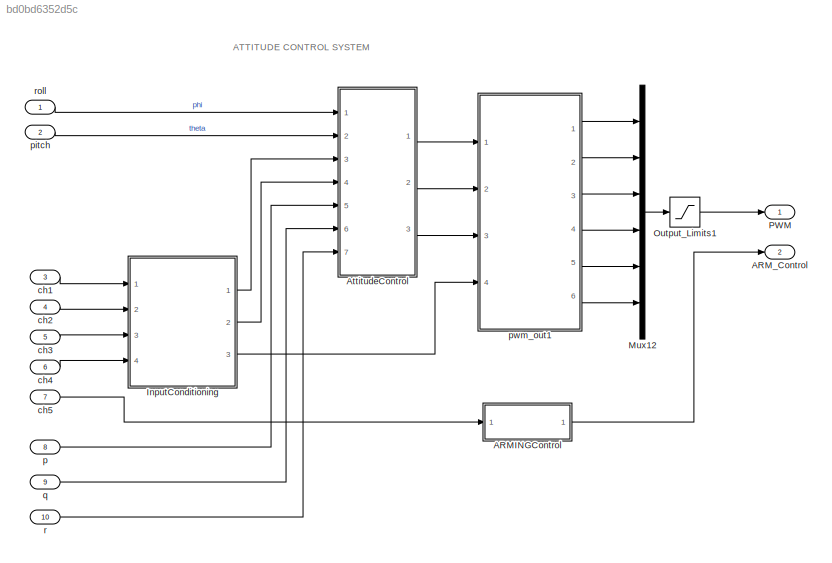
MODEL slx_bd0bd6352d5c
KIND model
CONFIG AbsTol = auto
CONFIG EnableMultiTasking = off
CONFIG FixedStep = auto
CONFIG MaxStep = auto
CONFIG MinStep = auto
CONFIG PostLoadFcn = kFactor = 1.2;\n\nKpRollAttitude = 0.630138625117681 / kFactor;\nKiRollAttitude = 0.0552303199591522 / kFactor;\n\nKpPitchAttitude = 0.630138625117681 / kFactor;\nKiPitchAttitude = 0.0552303199591522 / kFactor;\n\nKpRollRate = 1.31533836563383 / kFactor;\nKiRollRate = 0.460338699849681 / kFactor;\n\nKpPitchRate = 1.31533836563383 / kFactor;\nKiPitchRate = 0.460338699849681 / kFactor;\n\nKpYawRate = 1.3153383656...<+57ch>
CONFIG RelTol = 1e-3
CONFIG SampleTimeConstraint = Unconstrained
CONFIG Solver = FixedStepDiscrete
CONFIG SolverName = FixedStepDiscrete
CONFIG StartTime = 0.0
CONFIG StopTime = inf
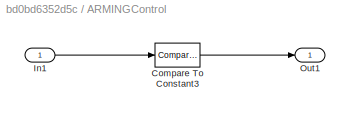
BLOCK [SubSystem] ARMINGControl
  Ports = [1, 1]
  RequestExecContextInheritance = off
  Variant = off
BLOCK [Reference] ARMINGControl/Compare To Constant3  REF=simulink/Logic and Bit
Operations/Compare
To Constant
  Ports = [1, 1]
  SourceBlock = simulink/Logic and Bit\nOperations/Compare\nTo Constant
  SourceType = Compare To Constant
BLOCK [Inport] ARMINGControl/In1
  IconDisplay = Port number
BLOCK [Outport] ARMINGControl/Out1
  IconDisplay = Port number
BLOCK [Outport] ARM_Control
  IconDisplay = Port number
  Port = 2
  PortDimensions = 1
  SamplingMode = Sample based
  SignalType = real
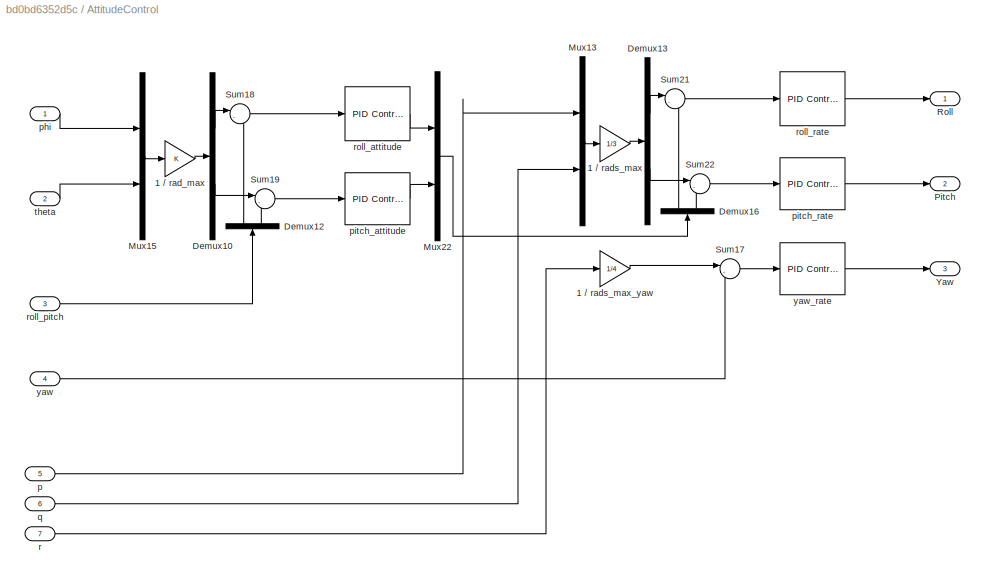
BLOCK [SubSystem] AttitudeControl
  Ports = [7, 3]
  RequestExecContextInheritance = off
  Variant = off
BLOCK [Gain] AttitudeControl/1 // rad_max
  OutDataTypeStr = Inherit: Inherit via internal rule
  ParamDataTypeStr = Inherit: Inherit via internal rule
  SaturateOnIntegerOverflow = off
BLOCK [Gain] AttitudeControl/1 // rads_max
  Gain = 1/3
  OutDataTypeStr = Inherit: Inherit via internal rule
  ParamDataTypeStr = Inherit: Inherit via internal rule
  SaturateOnIntegerOverflow = off
BLOCK [Gain] AttitudeControl/1 // rads_max_yaw
  Gain = 1/4
  OutDataTypeStr = Inherit: Inherit via internal rule
  ParamDataTypeStr = Inherit: Inherit via internal rule
  SaturateOnIntegerOverflow = off
BLOCK [Demux] AttitudeControl/Demux10
  DisplayOption = bar
  Outputs = 2
  Ports = [1, 2]
BLOCK [Demux] AttitudeControl/Demux12
  DisplayOption = bar
  Outputs = 2
  Ports = [1, 2]
BLOCK [Demux] AttitudeControl/Demux13
  DisplayOption = bar
  Outputs = 2
  Ports = [1, 2]
BLOCK [Demux] AttitudeControl/Demux16
  DisplayOption = bar
  Outputs = 2
  Ports = [1, 2]
BLOCK [Mux] AttitudeControl/Mux13
  DisplayOption = bar
  Inputs = 2
  Ports = [2, 1]
BLOCK [Mux] AttitudeControl/Mux15
  DisplayOption = bar
  Inputs = 2
  Ports = [2, 1]
BLOCK [Mux] AttitudeControl/Mux22
  DisplayOption = bar
  Inputs = 2
  Ports = [2, 1]
BLOCK [Outport] AttitudeControl/Pitch
  IconDisplay = Port number
  Port = 2
BLOCK [Outport] AttitudeControl/Roll
  IconDisplay = Port number
BLOCK [Sum] AttitudeControl/Sum17
  IconShape = round
  InputSameDT = off
  Inputs = |-+
  OutDataTypeStr = Inherit: Inherit via internal rule
  Ports = [2, 1]
  SaturateOnIntegerOverflow = off
BLOCK [Sum] AttitudeControl/Sum18
  IconShape = round
  InputSameDT = off
  Inputs = |-+
  OutDataTypeStr = Inherit: Inherit via internal rule
  Ports = [2, 1]
  SaturateOnIntegerOverflow = off
BLOCK [Sum] AttitudeControl/Sum19
  IconShape = round
  InputSameDT = off
  Inputs = |-+
  OutDataTypeStr = Inherit: Inherit via internal rule
  Ports = [2, 1]
  SaturateOnIntegerOverflow = off
BLOCK [Sum] AttitudeControl/Sum21
  IconShape = round
  InputSameDT = off
  Inputs = |-+
  OutDataTypeStr = Inherit: Inherit via internal rule
  Ports = [2, 1]
  SaturateOnIntegerOverflow = off
BLOCK [Sum] AttitudeControl/Sum22
  IconShape = round
  InputSameDT = off
  Inputs = |-+
  OutDataTypeStr = Inherit: Inherit via internal rule
  Ports = [2, 1]
  SaturateOnIntegerOverflow = off
BLOCK [Outport] AttitudeControl/Yaw
  IconDisplay = Port number
  Port = 3
BLOCK [Inport] AttitudeControl/p
  IconDisplay = Port number
  Port = 5
BLOCK [Inport] AttitudeControl/phi
  IconDisplay = Port number
BLOCK [Reference] AttitudeControl/pitch_attitude  REF=simulink/Continuous/PID Controller
  Ports = [1, 1]
  SourceBlock = simulink/Continuous/PID Controller
  SourceType = PID 1dof
BLOCK [Reference] AttitudeControl/pitch_rate  REF=simulink/Continuous/PID Controller
  Ports = [1, 1]
  SourceBlock = simulink/Continuous/PID Controller
  SourceType = PID 1dof
BLOCK [Inport] AttitudeControl/q
  IconDisplay = Port number
  Port = 6
BLOCK [Inport] AttitudeControl/r
  IconDisplay = Port number
  Port = 7
BLOCK [Reference] AttitudeControl/roll_attitude  REF=simulink/Continuous/PID Controller
  Ports = [1, 1]
  SourceBlock = simulink/Continuous/PID Controller
  SourceType = PID 1dof
BLOCK [Inport] AttitudeControl/roll_pitch
  IconDisplay = Port number
  Port = 3
BLOCK [Reference] AttitudeControl/roll_rate  REF=simulink/Continuous/PID Controller
  Ports = [1, 1]
  SourceBlock = simulink/Continuous/PID Controller
  SourceType = PID 1dof
BLOCK [Inport] AttitudeControl/theta
  IconDisplay = Port number
  Port = 2
BLOCK [Inport] AttitudeControl/yaw
  IconDisplay = Port number
  Port = 4
BLOCK [Reference] AttitudeControl/yaw_rate  REF=simulink/Continuous/PID Controller
  Ports = [1, 1]
  SourceBlock = simulink/Continuous/PID Controller
  SourceType = PID 1dof
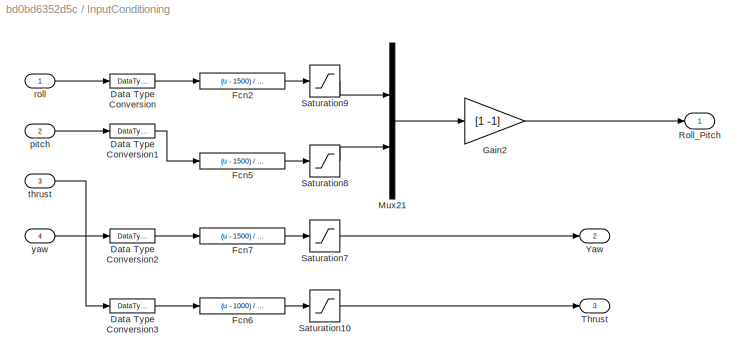
BLOCK [SubSystem] InputConditioning
  Ports = [4, 3]
  RequestExecContextInheritance = off
  Variant = off
BLOCK [DataTypeConversion] InputConditioning/Data Type Conversion
  OutDataTypeStr = single
  RndMeth = Floor
  SaturateOnIntegerOverflow = off
BLOCK [DataTypeConversion] InputConditioning/Data Type Conversion1
  OutDataTypeStr = single
  RndMeth = Floor
  SaturateOnIntegerOverflow = off
BLOCK [DataTypeConversion] InputConditioning/Data Type Conversion2
  OutDataTypeStr = single
  RndMeth = Floor
  SaturateOnIntegerOverflow = off
BLOCK [DataTypeConversion] InputConditioning/Data Type Conversion3
  OutDataTypeStr = single
  RndMeth = Floor
  SaturateOnIntegerOverflow = off
BLOCK [Fcn] InputConditioning/Fcn2
  Expr = (u - 1500) / 500
BLOCK [Fcn] InputConditioning/Fcn5
  Expr = (u - 1500) / 500
BLOCK [Fcn] InputConditioning/Fcn6
  Expr = (u - 1000) / 1000
BLOCK [Fcn] InputConditioning/Fcn7
  Expr = (u - 1500) / 500
BLOCK [Gain] InputConditioning/Gain2
  Gain = [1 -1]
  OutDataTypeStr = Inherit: Inherit via back propagation
  ParamDataTypeStr = Inherit: Inherit via internal rule
  SaturateOnIntegerOverflow = off
BLOCK [Mux] InputConditioning/Mux21
  DisplayOption = bar
  Inputs = 2
  Ports = [2, 1]
BLOCK [Outport] InputConditioning/Roll_Pitch
  IconDisplay = Port number
BLOCK [Saturate] InputConditioning/Saturation10
  InputPortMap = u0
  LowerLimit = 0
  Ports = [1, 1]
  UpperLimit = 1
BLOCK [Saturate] InputConditioning/Saturation7
  InputPortMap = u0
  LowerLimit = -1
  Ports = [1, 1]
  UpperLimit = 1
BLOCK [Saturate] InputConditioning/Saturation8
  InputPortMap = u0
  LowerLimit = -1
  Ports = [1, 1]
  UpperLimit = 1
BLOCK [Saturate] InputConditioning/Saturation9
  InputPortMap = u0
  LowerLimit = -1
  Ports = [1, 1]
  UpperLimit = 1
BLOCK [Outport] InputConditioning/Thrust
  IconDisplay = Port number
  Port = 3
BLOCK [Outport] InputConditioning/Yaw
  IconDisplay = Port number
  Port = 2
BLOCK [Inport] InputConditioning/pitch
  IconDisplay = Port number
  Port = 2
BLOCK [Inport] InputConditioning/roll
  IconDisplay = Port number
BLOCK [Inport] InputConditioning/thrust
  IconDisplay = Port number
  Port = 3
BLOCK [Inport] InputConditioning/yaw
  IconDisplay = Port number
  Port = 4
BLOCK [Mux] Mux12
  DisplayOption = bar
  Inputs = 6
  Ports = [6, 1]
BLOCK [Saturate] Output_Limits1
  InputPortMap = u0
  LowerLimit = 1000
  Ports = [1, 1]
  UpperLimit = 2000
BLOCK [Outport] PWM
  IconDisplay = Port number
  PortDimensions = 6
  SamplingMode = Sample based
  SignalType = real
BLOCK [Inport] ch1
  IconDisplay = Port number
  OutDataTypeStr = uint16
  Port = 3
  PortDimensions = 1
  SamplingMode = Sample based
  SignalType = real
BLOCK [Inport] ch2
  IconDisplay = Port number
  OutDataTypeStr = uint16
  Port = 4
  PortDimensions = 1
  SamplingMode = Sample based
  SignalType = real
BLOCK [Inport] ch3
  IconDisplay = Port number
  OutDataTypeStr = uint16
  Port = 5
  PortDimensions = 1
  SamplingMode = Sample based
  SignalType = real
BLOCK [Inport] ch4
  IconDisplay = Port number
  OutDataTypeStr = uint16
  Port = 6
  PortDimensions = 1
  SamplingMode = Sample based
  SignalType = real
BLOCK [Inport] ch5
  IconDisplay = Port number
  Interpolate = off
  OutDataTypeStr = uint16
  Port = 7
  PortDimensions = 1
  SamplingMode = Sample based
  SignalType = real
BLOCK [Inport] p
  IconDisplay = Port number
  Port = 8
  PortDimensions = 1
  SamplingMode = Sample based
  SignalType = real
BLOCK [Inport] pitch
  IconDisplay = Port number
  Port = 2
  PortDimensions = 1
  SamplingMode = Sample based
  SignalType = real
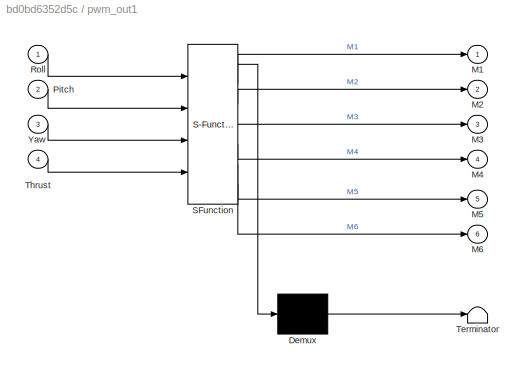
BLOCK [SubSystem] pwm_out1
  ErrorFcn = Stateflow.Translate.translate
  PermitHierarchicalResolution = ExplicitOnly
  Ports = [4, 6]
  RequestExecContextInheritance = off
  SFBlockType = MATLAB Function
  SystemSampleTime = 0.004
  TreatAsAtomicUnit = on
  Variant = off
BLOCK [Demux] pwm_out1/ Demux 
  Outputs = 1
  Ports = [1, 1]
BLOCK [S-Function] pwm_out1/ SFunction 
  EnableBusSupport = off
  FunctionName = sf_sfun
  PortCounts = [4 7]
  Ports = [4, 7]
  SFcnIsStateOwnerBlock = off
  SFunctionDeploymentMode = off
  Tag = Stateflow S-Function px4demo_attitude_control1 4
BLOCK [Terminator] pwm_out1/ Terminator 
BLOCK [Outport] pwm_out1/M1
  IconDisplay = Port number
BLOCK [Outport] pwm_out1/M2
  IconDisplay = Port number
  Port = 2
BLOCK [Outport] pwm_out1/M3
  IconDisplay = Port number
  Port = 3
BLOCK [Outport] pwm_out1/M4
  IconDisplay = Port number
  Port = 4
BLOCK [Outport] pwm_out1/M5
  IconDisplay = Port number
  Port = 5
BLOCK [Outport] pwm_out1/M6
  IconDisplay = Port number
  Port = 6
BLOCK [Inport] pwm_out1/Pitch
  IconDisplay = Port number
  Port = 2
BLOCK [Inport] pwm_out1/Roll
  IconDisplay = Port number
BLOCK [Inport] pwm_out1/Thrust
  IconDisplay = Port number
  Port = 4
BLOCK [Inport] pwm_out1/Yaw
  IconDisplay = Port number
  Port = 3
BLOCK [Inport] q
  IconDisplay = Port number
  Port = 9
  PortDimensions = 1
  SamplingMode = Sample based
  SignalType = real
BLOCK [Inport] r
  IconDisplay = Port number
  Port = 10
  PortDimensions = 1
  SamplingMode = Sample based
  SignalType = real
BLOCK [Inport] roll
  IconDisplay = Port number
  OutDataTypeStr = single
  PortDimensions = 1
  SamplingMode = Sample based
  SignalType = real
ANNOTATION (root): ATTITUDE CONTROL SYSTEM
LINE ARMINGControl/Compare To Constant3:1 -> ARMINGControl/Out1:1
LINE ARMINGControl/In1:1 -> ARMINGControl/Compare To Constant3:1
LINE ARMINGControl:1 -> ARM_Control:1
LINE AttitudeControl/1 // rad_max:1 -> AttitudeControl/Demux10:1
LINE AttitudeControl/1 // rads_max:1 -> AttitudeControl/Demux13:1
LINE AttitudeControl/1 // rads_max_yaw:1 -> AttitudeControl/Sum17:1
LINE AttitudeControl/Demux10:1 -> AttitudeControl/Sum18:1
LINE AttitudeControl/Demux10:2 -> AttitudeControl/Sum19:1
LINE AttitudeControl/Demux12:1 -> AttitudeControl/Sum18:2
LINE AttitudeControl/Demux12:2 -> AttitudeControl/Sum19:2
LINE AttitudeControl/Demux13:1 -> AttitudeControl/Sum21:1
LINE AttitudeControl/Demux13:2 -> AttitudeControl/Sum22:1
LINE AttitudeControl/Demux16:1 -> AttitudeControl/Sum21:2
LINE AttitudeControl/Demux16:2 -> AttitudeControl/Sum22:2
LINE AttitudeControl/Mux13:1 -> AttitudeControl/1 // rads_max:1
LINE AttitudeControl/Mux15:1 -> AttitudeControl/1 // rad_max:1
LINE AttitudeControl/Mux22:1 -> AttitudeControl/Demux16:1
LINE AttitudeControl/Sum17:1 -> AttitudeControl/yaw_rate:1
LINE AttitudeControl/Sum18:1 -> AttitudeControl/roll_attitude:1
LINE AttitudeControl/Sum19:1 -> AttitudeControl/pitch_attitude:1
LINE AttitudeControl/Sum21:1 -> AttitudeControl/roll_rate:1
LINE AttitudeControl/Sum22:1 -> AttitudeControl/pitch_rate:1
LINE AttitudeControl/p:1 -> AttitudeControl/Mux13:1
LINE AttitudeControl/phi:1 -> AttitudeControl/Mux15:1
LINE AttitudeControl/pitch_attitude:1 -> AttitudeControl/Mux22:2
LINE AttitudeControl/pitch_rate:1 -> AttitudeControl/Pitch:1
LINE AttitudeControl/q:1 -> AttitudeControl/Mux13:2
LINE AttitudeControl/r:1 -> AttitudeControl/1 // rads_max_yaw:1
LINE AttitudeControl/roll_attitude:1 -> AttitudeControl/Mux22:1
LINE AttitudeControl/roll_pitch:1 -> AttitudeControl/Demux12:1
LINE AttitudeControl/roll_rate:1 -> AttitudeControl/Roll:1
LINE AttitudeControl/theta:1 -> AttitudeControl/Mux15:2
LINE AttitudeControl/yaw:1 -> AttitudeControl/Sum17:2
LINE AttitudeControl/yaw_rate:1 -> AttitudeControl/Yaw:1
LINE AttitudeControl:1 -> pwm_out1:1
LINE AttitudeControl:2 -> pwm_out1:2
LINE AttitudeControl:3 -> pwm_out1:3
LINE InputConditioning/Data Type Conversion1:1 -> InputConditioning/Fcn5:1
LINE InputConditioning/Data Type Conversion2:1 -> InputConditioning/Fcn7:1
LINE InputConditioning/Data Type Conversion3:1 -> InputConditioning/Fcn6:1
LINE InputConditioning/Data Type Conversion:1 -> InputConditioning/Fcn2:1
LINE InputConditioning/Fcn2:1 -> InputConditioning/Saturation9:1
LINE InputConditioning/Fcn5:1 -> InputConditioning/Saturation8:1
LINE InputConditioning/Fcn6:1 -> InputConditioning/Saturation10:1
LINE InputConditioning/Fcn7:1 -> InputConditioning/Saturation7:1
LINE InputConditioning/Gain2:1 -> InputConditioning/Roll_Pitch:1
LINE InputConditioning/Mux21:1 -> InputConditioning/Gain2:1
LINE InputConditioning/Saturation10:1 -> InputConditioning/Thrust:1
LINE InputConditioning/Saturation7:1 -> InputConditioning/Yaw:1
LINE InputConditioning/Saturation8:1 -> InputConditioning/Mux21:2
LINE InputConditioning/Saturation9:1 -> InputConditioning/Mux21:1
LINE InputConditioning/pitch:1 -> InputConditioning/Data Type Conversion1:1
LINE InputConditioning/roll:1 -> InputConditioning/Data Type Conversion:1
LINE InputConditioning/thrust:1 -> InputConditioning/Data Type Conversion3:1
LINE InputConditioning/yaw:1 -> InputConditioning/Data Type Conversion2:1
LINE InputConditioning:1 -> AttitudeControl:3
LINE InputConditioning:2 -> AttitudeControl:4
LINE InputConditioning:3 -> pwm_out1:4
LINE Mux12:1 -> Output_Limits1:1
LINE Output_Limits1:1 -> PWM:1
LINE ch1:1 -> InputConditioning:1
LINE ch2:1 -> InputConditioning:2
LINE ch3:1 -> InputConditioning:3
LINE ch4:1 -> InputConditioning:4
LINE ch5:1 -> ARMINGControl:1
LINE p:1 -> AttitudeControl:5
LINE pitch:1 -> AttitudeControl:2
LINE pwm_out1:1 -> Mux12:1
LINE pwm_out1:2 -> Mux12:2
LINE pwm_out1:3 -> Mux12:3
LINE pwm_out1:4 -> Mux12:4
LINE pwm_out1:5 -> Mux12:5
LINE pwm_out1:6 -> Mux12:6
LINE q:1 -> AttitudeControl:6
LINE r:1 -> AttitudeControl:7
LINE roll:1 -> AttitudeControl:1
CHART pwm_out1 states=1 transitions=1
  STATE_LABEL 'eML_blk_kernel()'
  STATE_LABEL 'SCRIPT:\nfunction [M1, M2, M3, M4, M5, M6] = motor_mixer(Roll, Pitch, Yaw, Thrust)\n\nidle_PWM = uint16(1000);\n\n% Quad X\n% M1 = ((Roll + Pitch - Yaw) / 2 * Thrust + Thrust) * 1000 + idle_PWM;\n% M2 = ((-Roll + Pitch + Yaw) / 2 * Thrust + Thrust) * 1000 + idle_PWM;\n% M3 = ((-Roll - Pitch - Yaw) / 2 * Thrust + Thrust) * 1000 + idle_PWM;\n% M4 = ((Roll - Pitch + Yaw) / 2 * Thrust + Thrust) * 1000 + idle_P...<+1925ch>'
